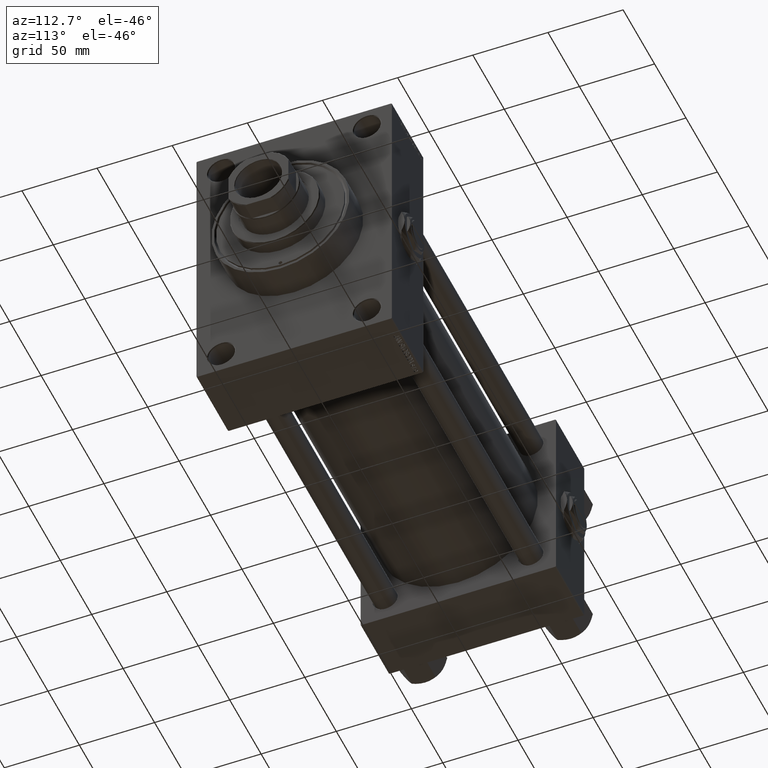
[diagram: clean part render]
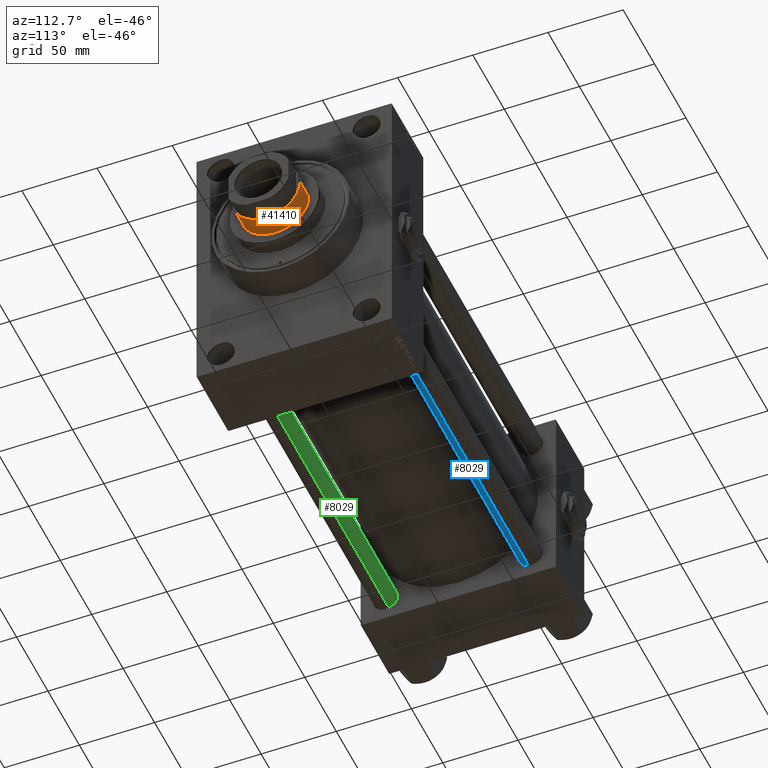
[diagram: same view with three faces highlighted in distinct colors, each labeled with its STEP entity id]
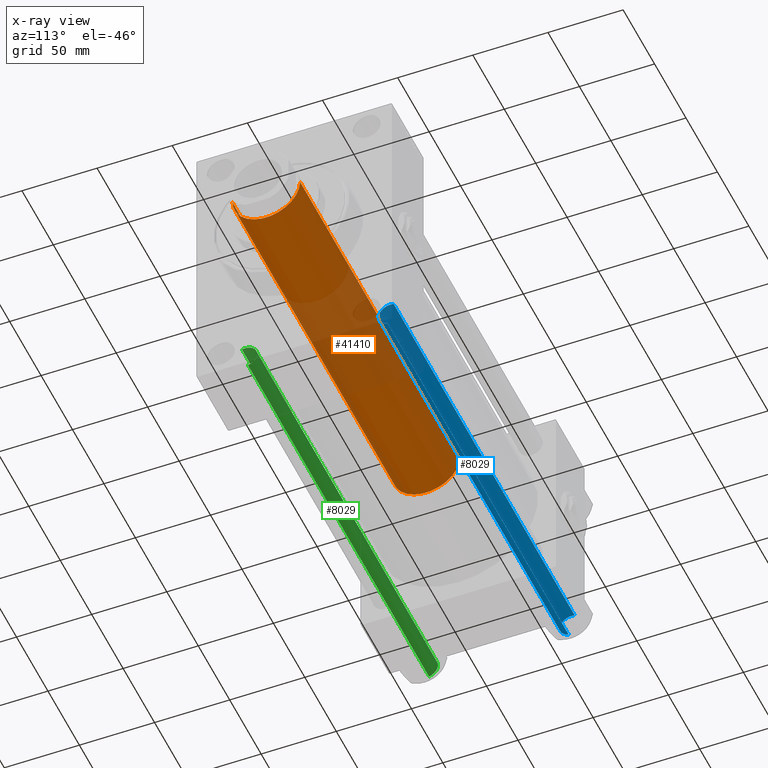
[diagram: x-ray of the same camera — body ghosted, the three highlighted faces saturated]
A machine part, auxiliary view with three faces highlighted in distinct colors.
The next image is the same camera in x-ray (body ghosted, the three faces saturated) — at least one of them is partly hidden behind the body in this view.
Their STEP definitions:

[orange] entity #41410 — the highlighted cylindrical surface (partial cylindrical patch) has radius 22.5 mm, axis along (-1, 0, 0).
#2017 = DIRECTION ( 'NONE',  ( 1.000000000000000000, 0.000000000000000000, 0.000000000000000000 ) ) ;
#2667 = DIRECTION ( 'NONE',  ( -0.000000000000000000, -0.000000000000000000, -1.000000000000000000 ) ) ;
#4319 = CARTESIAN_POINT ( 'NONE',  ( -22.50000000000000355, 0.000000000000000000, 51.00000000000000000 ) ) ;
#7792 = ORIENTED_EDGE ( 'NONE', *, *, #12392, .T. ) ;
#9830 = CARTESIAN_POINT ( 'NONE',  ( -22.50000000000000355, 0.000000000000000000, 306.0000000000000000 ) ) ;
#10502 = FACE_OUTER_BOUND ( 'NONE', #36447, .T. ) ;
#10886 = CARTESIAN_POINT ( 'NONE',  ( 0.000000000000000000, 0.000000000000000000, 51.00000000000000000 ) ) ;
#12392 = EDGE_CURVE ( 'NONE', #34527, #16749, #43827, .T. ) ;
#14435 = CARTESIAN_POINT ( 'NONE',  ( 22.50000000000000355, 2.755455298081545172E-15, 306.0000000000000000 ) ) ;
#14954 = EDGE_CURVE ( 'NONE', #42525, #34480, #48791, .T. ) ;
#15174 = DIRECTION ( 'NONE',  ( 0.000000000000000000, 0.000000000000000000, 1.000000000000000000 ) ) ;
#16749 = VERTEX_POINT ( 'NONE', #4319 ) ;
#19479 = EDGE_CURVE ( 'NONE', #42525, #16749, #33062, .T. ) ;
#21500 = DIRECTION ( 'NONE',  ( -0.000000000000000000, -0.000000000000000000, -1.000000000000000000 ) ) ;
#22901 = ORIENTED_EDGE ( 'NONE', *, *, #14954, .T. ) ;
#25817 = LINE ( 'NONE', #14435, #29990 ) ;
#28952 = ORIENTED_EDGE ( 'NONE', *, *, #19479, .F. ) ;
#29990 = VECTOR ( 'NONE', #21500, 1000.000000000000000 ) ;
#33062 = LINE ( 'NONE', #9830, #47269 ) ;
#34480 = VERTEX_POINT ( 'NONE', #44615 ) ;
#34527 = VERTEX_POINT ( 'NONE', #44369 ) ;
#36447 = EDGE_LOOP ( 'NONE', ( #22901, #48895, #7792, #28952 ) ) ;
#36624 = CARTESIAN_POINT ( 'NONE',  ( 0.000000000000000000, 0.000000000000000000, 305.5000000000000568 ) ) ;
#38980 = AXIS2_PLACEMENT_3D ( 'NONE', #10886, #15174, #42221 ) ;
#40670 = DIRECTION ( 'NONE',  ( 0.000000000000000000, 0.000000000000000000, -1.000000000000000000 ) ) ;
#40823 = DIRECTION ( 'NONE',  ( -1.000000000000000000, 0.000000000000000000, 0.000000000000000000 ) ) ;
#41410 = ADVANCED_FACE ( 'NONE', ( #10502 ), #48423, .T. ) ;
#42221 = DIRECTION ( 'NONE',  ( 1.000000000000000000, 0.000000000000000000, 0.000000000000000000 ) ) ;
#42525 = VERTEX_POINT ( 'NONE', #50010 ) ;
#43827 = CIRCLE ( 'NONE', #38980, 22.50000000000000355 ) ;
#44369 = CARTESIAN_POINT ( 'NONE',  ( 22.50000000000000355, 2.755455298081545172E-15, 51.00000000000000000 ) ) ;
#44615 = CARTESIAN_POINT ( 'NONE',  ( 22.50000000000000355, 2.755455298081545172E-15, 305.5000000000000568 ) ) ;
#44744 = AXIS2_PLACEMENT_3D ( 'NONE', #36624, #40670, #2017 ) ;
#44884 = CARTESIAN_POINT ( 'NONE',  ( 0.000000000000000000, 0.000000000000000000, 306.0000000000000000 ) ) ;
#45961 = AXIS2_PLACEMENT_3D ( 'NONE', #44884, #2667, #40823 ) ;
#47269 = VECTOR ( 'NONE', #47776, 1000.000000000000000 ) ;
#47645 = EDGE_CURVE ( 'NONE', #34480, #34527, #25817, .T. ) ;
#47776 = DIRECTION ( 'NONE',  ( -0.000000000000000000, -0.000000000000000000, -1.000000000000000000 ) ) ;
#48423 = CYLINDRICAL_SURFACE ( 'NONE', #45961, 22.50000000000000355 ) ;
#48791 = CIRCLE ( 'NONE', #44744, 22.50000000000000355 ) ;
#48895 = ORIENTED_EDGE ( 'NONE', *, *, #47645, .T. ) ;
#50010 = CARTESIAN_POINT ( 'NONE',  ( -22.50000000000000355, 0.000000000000000000, 305.5000000000000568 ) ) ;

[blue] entity #8029 — the highlighted cylindrical surface (edge-blend (fillet) strip) has radius 8 mm, axis along (1, -0, 0).
#7 = EDGE_CURVE ( 'NONE', #38663, #42924, #38388, .T. ) ;
#132 = DIRECTION ( 'NONE',  ( -0.000000000000000000, -0.000000000000000000, -1.000000000000000000 ) ) ;
#241 = CARTESIAN_POINT ( 'NONE',  ( 8.000000000000000000, 9.797174393178825657E-16, 288.5000000000000000 ) ) ;
#1165 = EDGE_CURVE ( 'NONE', #38663, #5249, #41573, .T. ) ;
#4222 = CARTESIAN_POINT ( 'NONE',  ( 0.000000000000000000, 0.000000000000000000, 288.5000000000000000 ) ) ;
#5249 = VERTEX_POINT ( 'NONE', #14635 ) ;
#6958 = CARTESIAN_POINT ( 'NONE',  ( 8.000000000000000000, 9.797174393178825657E-16, 289.0000000000000000 ) ) ;
#8029 = ADVANCED_FACE ( 'NONE', ( #18761 ), #30133, .T. ) ;
#8675 = CARTESIAN_POINT ( 'NONE',  ( -8.000000000000000000, 0.000000000000000000, 0.5000000000000004441 ) ) ;
#8852 = ORIENTED_EDGE ( 'NONE', *, *, #7, .T. ) ;
#9165 = CARTESIAN_POINT ( 'NONE',  ( -8.000000000000000000, 0.000000000000000000, 288.5000000000000000 ) ) ;
#12354 = CARTESIAN_POINT ( 'NONE',  ( -8.000000000000000000, 0.000000000000000000, 289.0000000000000000 ) ) ;
#13085 = VECTOR ( 'NONE', #43189, 1000.000000000000000 ) ;
#14635 = CARTESIAN_POINT ( 'NONE',  ( 8.000000000000000000, 9.797174393178825657E-16, 0.5000000000000004441 ) ) ;
#16234 = DIRECTION ( 'NONE',  ( -0.000000000000000000, -0.000000000000000000, 1.000000000000000000 ) ) ;
#16728 = ORIENTED_EDGE ( 'NONE', *, *, #32351, .T. ) ;
#17894 = ORIENTED_EDGE ( 'NONE', *, *, #48104, .T. ) ;
#18761 = FACE_OUTER_BOUND ( 'NONE', #39996, .T. ) ;
#20265 = CARTESIAN_POINT ( 'NONE',  ( 0.000000000000000000, 0.000000000000000000, 0.5000000000000004441 ) ) ;
#22292 = DIRECTION ( 'NONE',  ( -1.000000000000000000, 0.000000000000000000, 0.000000000000000000 ) ) ;
#23710 = LINE ( 'NONE', #12354, #13085 ) ;
#26354 = AXIS2_PLACEMENT_3D ( 'NONE', #20265, #16234, #34932 ) ;
#27216 = DIRECTION ( 'NONE',  ( 1.000000000000000000, 0.000000000000000000, 0.000000000000000000 ) ) ;
#28771 = CIRCLE ( 'NONE', #26354, 8.000000000000000000 ) ;
#30133 = CYLINDRICAL_SURFACE ( 'NONE', #40440, 8.000000000000000000 ) ;
#32351 = EDGE_CURVE ( 'NONE', #42879, #5249, #28771, .T. ) ;
#32746 = VECTOR ( 'NONE', #132, 1000.000000000000000 ) ;
#33568 = ORIENTED_EDGE ( 'NONE', *, *, #1165, .F. ) ;
#34349 = AXIS2_PLACEMENT_3D ( 'NONE', #4222, #46442, #27216 ) ;
#34932 = DIRECTION ( 'NONE',  ( 1.000000000000000000, 0.000000000000000000, 0.000000000000000000 ) ) ;
#38388 = CIRCLE ( 'NONE', #34349, 8.000000000000000000 ) ;
#38474 = CARTESIAN_POINT ( 'NONE',  ( 0.000000000000000000, 0.000000000000000000, 289.0000000000000000 ) ) ;
#38663 = VERTEX_POINT ( 'NONE', #241 ) ;
#39996 = EDGE_LOOP ( 'NONE', ( #33568, #8852, #17894, #16728 ) ) ;
#40440 = AXIS2_PLACEMENT_3D ( 'NONE', #38474, #49111, #22292 ) ;
#41573 = LINE ( 'NONE', #6958, #32746 ) ;
#42879 = VERTEX_POINT ( 'NONE', #8675 ) ;
#42924 = VERTEX_POINT ( 'NONE', #9165 ) ;
#43189 = DIRECTION ( 'NONE',  ( -0.000000000000000000, -0.000000000000000000, -1.000000000000000000 ) ) ;
#46442 = DIRECTION ( 'NONE',  ( 0.000000000000000000, 0.000000000000000000, -1.000000000000000000 ) ) ;
#48104 = EDGE_CURVE ( 'NONE', #42924, #42879, #23710, .T. ) ;
#49111 = DIRECTION ( 'NONE',  ( -0.000000000000000000, -0.000000000000000000, -1.000000000000000000 ) ) ;

[green] entity #8029 — the highlighted cylindrical surface (edge-blend (fillet) strip) has radius 8 mm, axis along (-1, 0, 0).
#7 = EDGE_CURVE ( 'NONE', #38663, #42924, #38388, .T. ) ;
#132 = DIRECTION ( 'NONE',  ( -0.000000000000000000, -0.000000000000000000, -1.000000000000000000 ) ) ;
#241 = CARTESIAN_POINT ( 'NONE',  ( 8.000000000000000000, 9.797174393178825657E-16, 288.5000000000000000 ) ) ;
#1165 = EDGE_CURVE ( 'NONE', #38663, #5249, #41573, .T. ) ;
#4222 = CARTESIAN_POINT ( 'NONE',  ( 0.000000000000000000, 0.000000000000000000, 288.5000000000000000 ) ) ;
#5249 = VERTEX_POINT ( 'NONE', #14635 ) ;
#6958 = CARTESIAN_POINT ( 'NONE',  ( 8.000000000000000000, 9.797174393178825657E-16, 289.0000000000000000 ) ) ;
#8029 = ADVANCED_FACE ( 'NONE', ( #18761 ), #30133, .T. ) ;
#8675 = CARTESIAN_POINT ( 'NONE',  ( -8.000000000000000000, 0.000000000000000000, 0.5000000000000004441 ) ) ;
#8852 = ORIENTED_EDGE ( 'NONE', *, *, #7, .T. ) ;
#9165 = CARTESIAN_POINT ( 'NONE',  ( -8.000000000000000000, 0.000000000000000000, 288.5000000000000000 ) ) ;
#12354 = CARTESIAN_POINT ( 'NONE',  ( -8.000000000000000000, 0.000000000000000000, 289.0000000000000000 ) ) ;
#13085 = VECTOR ( 'NONE', #43189, 1000.000000000000000 ) ;
#14635 = CARTESIAN_POINT ( 'NONE',  ( 8.000000000000000000, 9.797174393178825657E-16, 0.5000000000000004441 ) ) ;
#16234 = DIRECTION ( 'NONE',  ( -0.000000000000000000, -0.000000000000000000, 1.000000000000000000 ) ) ;
#16728 = ORIENTED_EDGE ( 'NONE', *, *, #32351, .T. ) ;
#17894 = ORIENTED_EDGE ( 'NONE', *, *, #48104, .T. ) ;
#18761 = FACE_OUTER_BOUND ( 'NONE', #39996, .T. ) ;
#20265 = CARTESIAN_POINT ( 'NONE',  ( 0.000000000000000000, 0.000000000000000000, 0.5000000000000004441 ) ) ;
#22292 = DIRECTION ( 'NONE',  ( -1.000000000000000000, 0.000000000000000000, 0.000000000000000000 ) ) ;
#23710 = LINE ( 'NONE', #12354, #13085 ) ;
#26354 = AXIS2_PLACEMENT_3D ( 'NONE', #20265, #16234, #34932 ) ;
#27216 = DIRECTION ( 'NONE',  ( 1.000000000000000000, 0.000000000000000000, 0.000000000000000000 ) ) ;
#28771 = CIRCLE ( 'NONE', #26354, 8.000000000000000000 ) ;
#30133 = CYLINDRICAL_SURFACE ( 'NONE', #40440, 8.000000000000000000 ) ;
#32351 = EDGE_CURVE ( 'NONE', #42879, #5249, #28771, .T. ) ;
#32746 = VECTOR ( 'NONE', #132, 1000.000000000000000 ) ;
#33568 = ORIENTED_EDGE ( 'NONE', *, *, #1165, .F. ) ;
#34349 = AXIS2_PLACEMENT_3D ( 'NONE', #4222, #46442, #27216 ) ;
#34932 = DIRECTION ( 'NONE',  ( 1.000000000000000000, 0.000000000000000000, 0.000000000000000000 ) ) ;
#38388 = CIRCLE ( 'NONE', #34349, 8.000000000000000000 ) ;
#38474 = CARTESIAN_POINT ( 'NONE',  ( 0.000000000000000000, 0.000000000000000000, 289.0000000000000000 ) ) ;
#38663 = VERTEX_POINT ( 'NONE', #241 ) ;
#39996 = EDGE_LOOP ( 'NONE', ( #33568, #8852, #17894, #16728 ) ) ;
#40440 = AXIS2_PLACEMENT_3D ( 'NONE', #38474, #49111, #22292 ) ;
#41573 = LINE ( 'NONE', #6958, #32746 ) ;
#42879 = VERTEX_POINT ( 'NONE', #8675 ) ;
#42924 = VERTEX_POINT ( 'NONE', #9165 ) ;
#43189 = DIRECTION ( 'NONE',  ( -0.000000000000000000, -0.000000000000000000, -1.000000000000000000 ) ) ;
#46442 = DIRECTION ( 'NONE',  ( 0.000000000000000000, 0.000000000000000000, -1.000000000000000000 ) ) ;
#48104 = EDGE_CURVE ( 'NONE', #42924, #42879, #23710, .T. ) ;
#49111 = DIRECTION ( 'NONE',  ( -0.000000000000000000, -0.000000000000000000, -1.000000000000000000 ) ) ;